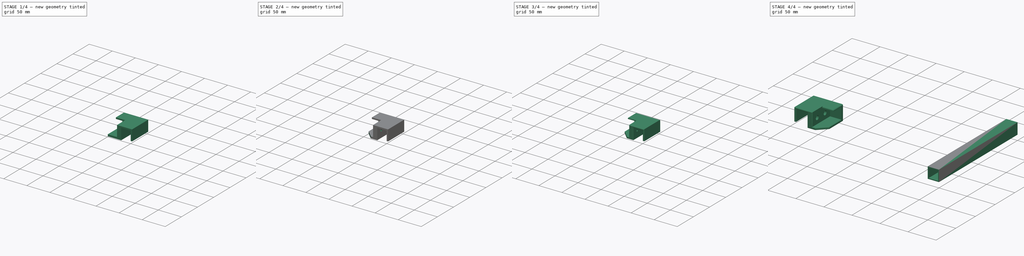
[diagram: build sequence overview — one tinted view per stage of 4, left to right]
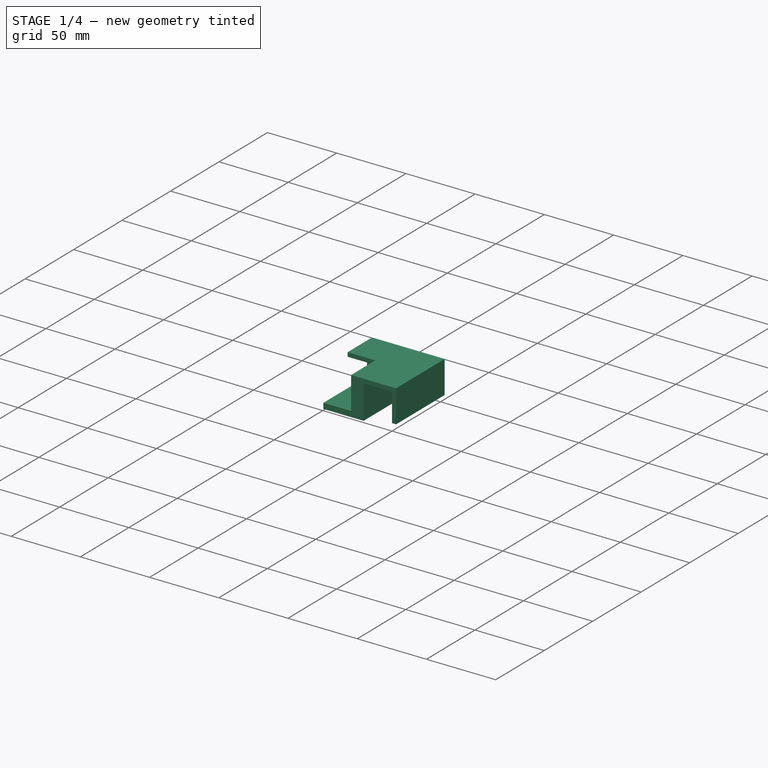
[diagram: stage 1 of 4 — iso view after this stage's code; geometry added in this stage tinted green]
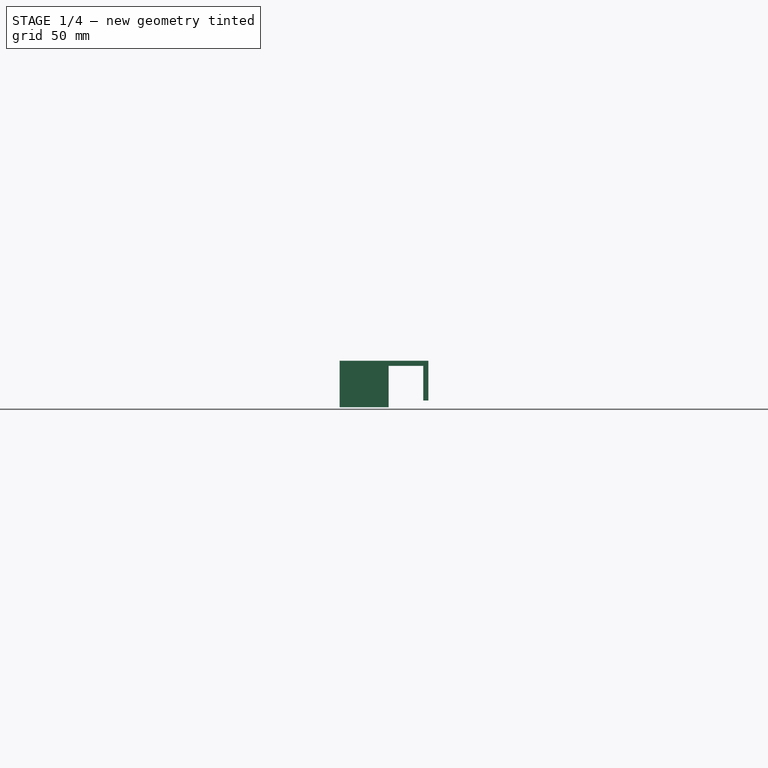
[diagram: stage 1 of 4 — front view after this stage's code; geometry added in this stage tinted green]
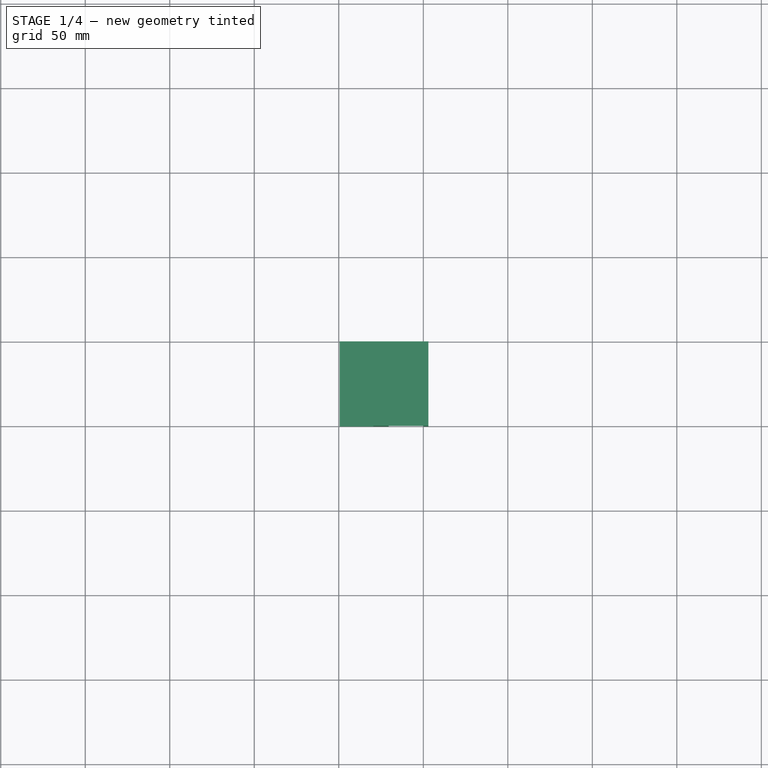
[diagram: stage 1 of 4 — top view after this stage's code; geometry added in this stage tinted green]
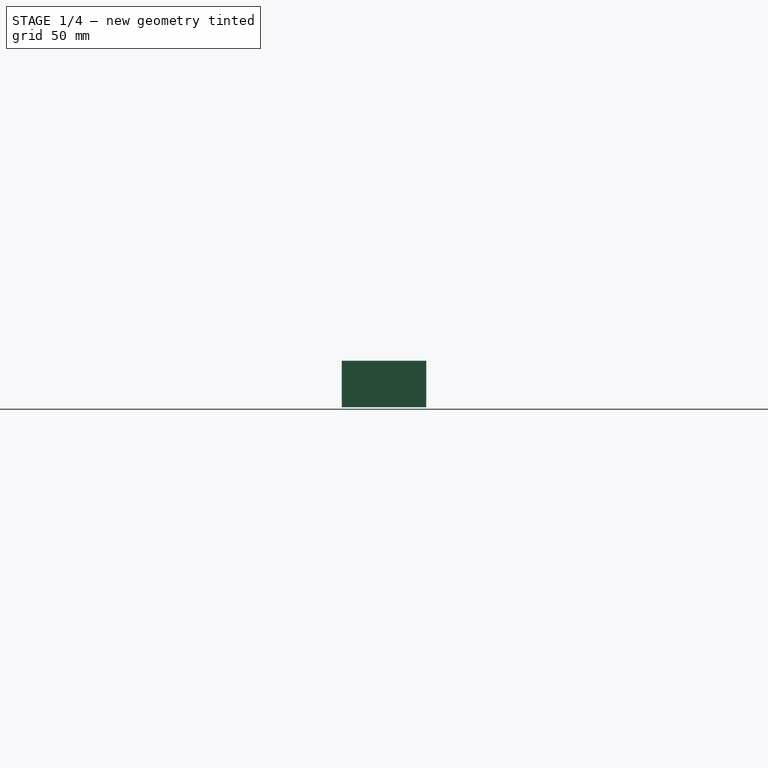
[diagram: stage 1 of 4 — right view after this stage's code; geometry added in this stage tinted green]
FCSTD DOCUMENT  (FreeCAD 1.0R39109 (Git))
Label: SolarhalterV2 Kurz
License: All rights reserved
LicenseURL: http://en.wikipedia.org/wiki/All_rights_reserved
objects: Sketcher::SketchObject×7, PartDesign::Pocket×4, PartDesign::Pad×3, PartDesign::Fillet×3, PartDesign::Body×2, Part::Mirroring×1
note: 47 computed .brp shape members not serialized (recipe doc carries the construction recipe); baked Part::Feature solids carry a one-line shape summary decoded from their .brp

FEATURE [PartDesign::Body] Body  label="Aluprofil"
  AllowCompound = false
  Group = -> [Sketch,Pad]
  Origin = -> Origin
  Tip = -> Pad
FEATURE [Sketcher::SketchObject] Sketch001
  ArcFitTolerance = 1e-06
  AttachmentSupport = -> [XZ_Plane001]
  FullyConstrained = true
  MakeInternals = false
  MapMode = 5
  Placement = pos=(0,0,0) rot=(1,0,0;1.5708rad)
  sketch-geometry (12):
    g0: LineSegment StartX=0 StartY=0 StartZ=0 EndX=0 EndY=20.5 EndZ=0
    g1: LineSegment StartX=0 StartY=20.5 StartZ=0 EndX=-20.5 EndY=20.5 EndZ=0
    g2: LineSegment StartX=-20.5 StartY=20.5 StartZ=0 EndX=-20.5 EndY=-4 EndZ=0
    g3: LineSegment StartX=-20.5 StartY=-4 StartZ=0 EndX=-49.5 EndY=-4 EndZ=0
    g4: LineSegment StartX=-49.5 StartY=-4 StartZ=0 EndX=-49.5 EndY=0 EndZ=0
    g5: LineSegment StartX=-49.5 StartY=0 StartZ=0 EndX=-29.5 EndY=0 EndZ=0
    g6: LineSegment StartX=-29.5 StartY=0 StartZ=0 EndX=-29.5 EndY=20.5 EndZ=0
    g7: LineSegment StartX=-29.5 StartY=20.5 StartZ=0 EndX=-49.5 EndY=20.5 EndZ=0
    g8: LineSegment StartX=-49.5 StartY=20.5 StartZ=0 EndX=-49.5 EndY=23.5 EndZ=0
    g9: LineSegment StartX=-49.5 StartY=23.5 StartZ=0 EndX=3 EndY=23.5 EndZ=0
    g10: LineSegment StartX=3 StartY=23.5 StartZ=0 EndX=3 EndY=0 EndZ=0
    g11: LineSegment StartX=3 StartY=0 StartZ=0 EndX=0 EndY=0 EndZ=0
  constraints (35):
    c: Coincident(g-1,g0)
    c: PointOnObject(g0,g-2)
    c: Coincident(g0,g1)
    c: Horizontal(g1)
    c: Coincident(g1,g2)
    c: Vertical(g2)
    c: Coincident(g2,g3)
    c: Horizontal(g3)
    c: Coincident(g3,g4)
    c: Vertical(g4)
    c: Coincident(g4,g5)
    c: Horizontal(g5)
    c: Coincident(g5,g6)
    c: Vertical(g6)
    c: Coincident(g6,g7)
    c: Horizontal(g7)
    c: Coincident(g7,g8)
    c: Vertical(g8)
    c: Coincident(g8,g9)
    c: Horizontal(g9)
    c: Coincident(g9,g10)
    c: PointOnObject(g10,g-1)
    c: Vertical(g10)
    c: Coincident(g10,g11)
    c: Coincident(g11,g0)
    c: DistanceY(g8,g8) = 3
    c: DistanceX(g7,g7) = 20
    c: Vertical(g4,g7)
    c: DistanceY(g4,g4) = 4
    c: DistanceY(g6,g6) = 20.5
    c: Distance(g5,g2) = 9
    c: Distance(g1,g0) = 20.5
    c: DistanceY(g0,g0) = 20.5
    c: Horizontal(g6,g1)
    c: Distance(g11,g11) = 3
FEATURE [PartDesign::Pad] Pad001
  Direction = (0,-1,2e-16)
  Length = 50
  Length2 = 10
  Placement = pos=(0,0,0) rot=(1,0,0;1.5708rad)
  Profile = -> Sketch001
  ReferenceAxis = -> Sketch001 [N_Axis]
  Suppressed = false
  Type = 0
FEATURE [Sketcher::SketchObject] Sketch002
  ArcFitTolerance = 1e-06
  AttachmentSupport = -> [Pad001]
  ExternalGeometry = -> [Pad001]
  FullyConstrained = true
  MakeInternals = false
  MapMode = 5
  Placement = pos=(0,-50,0) rot=(1,0,0;1.5708rad)
  sketch-geometry (4):
    g0: LineSegment StartX=-49.5 StartY=23.5 StartZ=0 EndX=-49.5 EndY=20.5 EndZ=0
    g1: LineSegment StartX=-49.5 StartY=20.5 StartZ=0 EndX=-29.5 EndY=20.5 EndZ=0
    g2: LineSegment StartX=-29.5 StartY=20.5 StartZ=0 EndX=-29.5 EndY=23.5 EndZ=0
    g3: LineSegment StartX=-29.5 StartY=23.5 StartZ=0 EndX=-49.5 EndY=23.5 EndZ=0
  constraints (10):
    c: Coincident(g0,g1)
    c: Coincident(g1,g2)
    c: Coincident(g2,g3)
    c: Coincident(g3,g0)
    c: Vertical(g0)
    c: Vertical(g2)
    c: Horizontal(g1)
    c: Horizontal(g3)
    c: Coincident(g0,g-4)
    c: Coincident(g1,g-3)
FEATURE [PartDesign::Pocket] Pocket
  BaseFeature = -> Pad001
  Direction = (0,1,-2e-16)
  Length = 25
  Length2 = 5
  Placement = pos=(0,0,0) rot=(1,0,0;1.5708rad)
  Profile = -> Sketch002
  ReferenceAxis = -> Sketch002 [N_Axis]
  Suppressed = false
  Type = 0
FEATURE [Sketcher::SketchObject] Sketch003
  ArcFitTolerance = 1e-06
  AttachmentSupport = -> [Pocket]
  ExternalGeometry = -> [Pocket]
  FullyConstrained = true
  MakeInternals = false
  MapMode = 5
  Placement = pos=(-29.5,0,0) rot=(0.707107,0,-0.707107;3.14159rad)
  sketch-geometry (4):
    g0: LineSegment StartX=0 StartY=0 StartZ=0 EndX=0 EndY=5 EndZ=0
    g1: LineSegment StartX=0 StartY=5 StartZ=0 EndX=-20.5 EndY=5 EndZ=0
    g2: LineSegment StartX=-20.5 StartY=5 StartZ=0 EndX=-20.5 EndY=0 EndZ=0
    g3: LineSegment StartX=-20.5 StartY=0 StartZ=0 EndX=0 EndY=0 EndZ=0
  constraints (11):
    c: Coincident(g0,g1)
    c: Coincident(g1,g2)
    c: Coincident(g2,g3)
    c: Coincident(g3,g0)
    c: Vertical(g0)
    c: Vertical(g2)
    c: Horizontal(g1)
    c: Horizontal(g3)
    c: Coincident(g0,g-1)
    c: PointOnObject(g1,g-4)
    c: DistanceY(g0,g0) = 5
FEATURE [PartDesign::Pad] Pad002
  BaseFeature = -> Pocket
  Direction = (-1,0,-2e-16)
  Length = 10
  Length2 = 10
  Placement = pos=(0,0,0) rot=(1,0,0;1.5708rad)
  Profile = -> Sketch003
  ReferenceAxis = -> Sketch003 [N_Axis]
  Suppressed = false
  Type = 3
  UpToFace = -> Pocket [Face13]
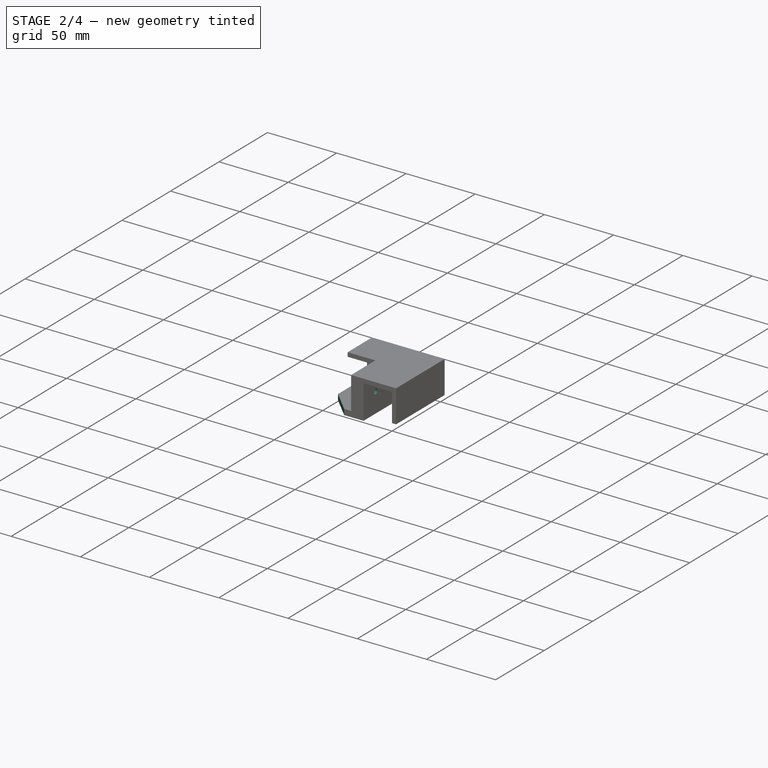
[diagram: stage 2 of 4 — iso view after this stage's code; geometry added in this stage tinted green]
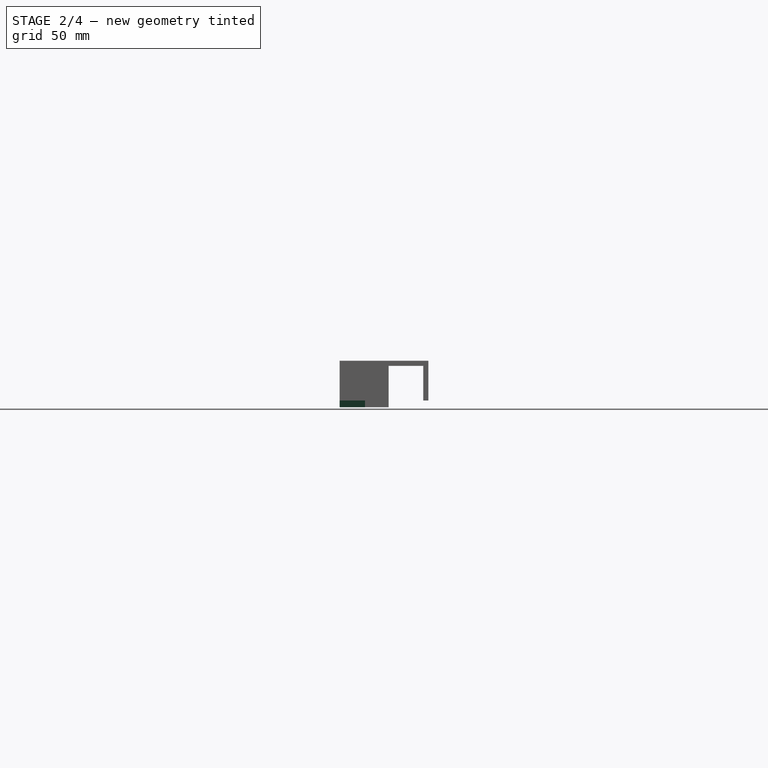
[diagram: stage 2 of 4 — front view after this stage's code; geometry added in this stage tinted green]
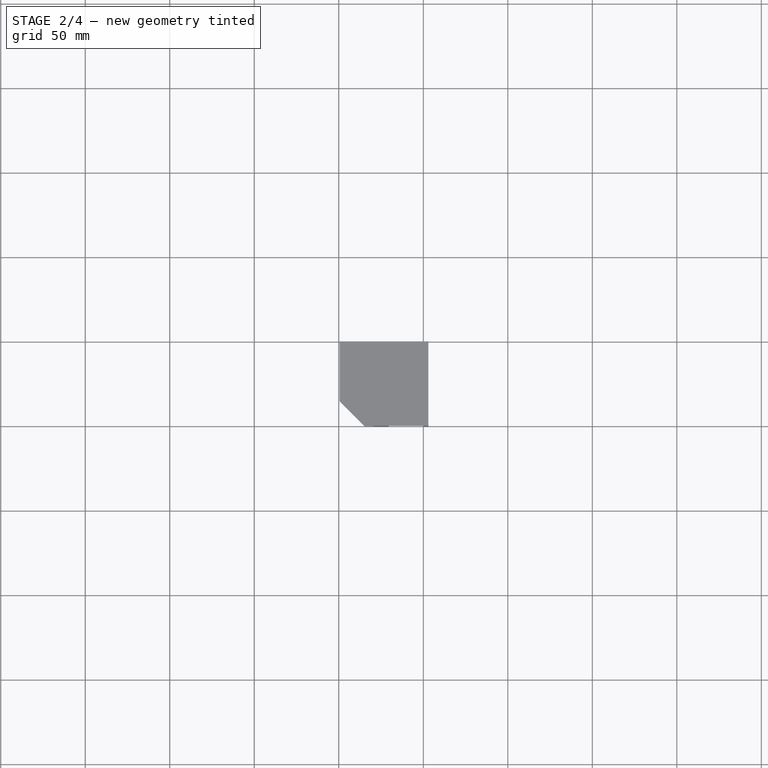
[diagram: stage 2 of 4 — top view after this stage's code; geometry added in this stage tinted green]
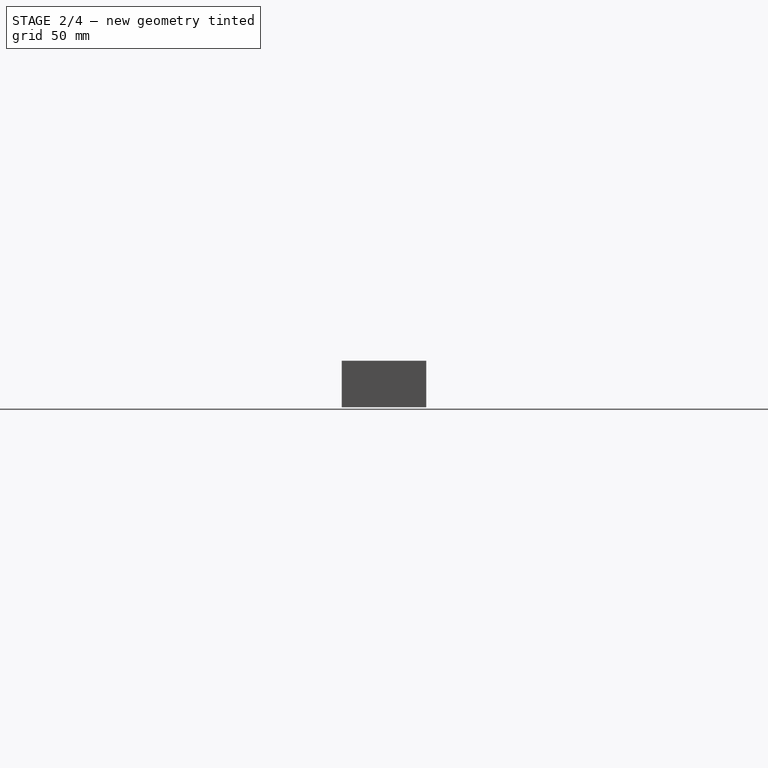
[diagram: stage 2 of 4 — right view after this stage's code; geometry added in this stage tinted green]
FEATURE [Sketcher::SketchObject] Sketch004
  ArcFitTolerance = 1e-06
  AttachmentSupport = -> [Pad002]
  ExternalGeometry = -> [Pad002]
  FullyConstrained = true
  MakeInternals = false
  MapMode = 5
  Placement = pos=(0,0,0) rot=(0,0,1;3.14159rad)
  sketch-geometry (3):
    g0: LineSegment StartX=34.5 StartY=50 StartZ=0 EndX=49.5 EndY=35 EndZ=0
    g1: LineSegment StartX=34.5 StartY=50 StartZ=0 EndX=49.5 EndY=50 EndZ=0
    g2: LineSegment StartX=49.5 StartY=50 StartZ=0 EndX=49.5 EndY=35 EndZ=0
  constraints (8):
    c: PointOnObject(g0,g-3)
    c: PointOnObject(g0,g-4)
    c: DistanceY(g0,g-4) = 15
    c: DistanceX(g0,g-4) = 15
    c: Coincident(g0,g1)
    c: Coincident(g1,g-4)
    c: Coincident(g1,g2)
    c: Coincident(g2,g0)
FEATURE [PartDesign::Pocket] Pocket001
  BaseFeature = -> Pad002
  Direction = (0,0,-1)
  Length = 5
  Length2 = 5
  Placement = pos=(0,0,0) rot=(1,0,0;1.5708rad)
  Profile = -> Sketch004
  ReferenceAxis = -> Sketch004 [N_Axis]
  Suppressed = false
  Type = 0
FEATURE [Sketcher::SketchObject] Sketch005
  ArcFitTolerance = 1e-06
  AttachmentSupport = -> [Pocket001]
  ExternalGeometry = -> [Pocket001]
  FullyConstrained = true
  MakeInternals = false
  MapMode = 5
  Placement = pos=(-29.5,0,0) rot=(0.707107,0,-0.707107;3.14159rad)
  sketch-geometry (3):
    g0: LineSegment [constr] StartX=-1.13e-14 StartY=50 StartZ=0 EndX=-20.5 EndY=25 EndZ=0
    g1: Circle CenterX=-10.25 CenterY=37.5 CenterZ=0 NormalX=0 NormalY=0 NormalZ=1 AngleXU=0 Radius=3.75
    g2: Circle CenterX=-10.25 CenterY=17.5 CenterZ=0 NormalX=0 NormalY=0 NormalZ=1 AngleXU=0 Radius=3.75
  constraints (7):
    c: Coincident(g0,g-3)
    c: Coincident(g0,g-4)
    c: Symmetric(g0,g0,g1)
    c: Diameter(g1) = 7.5
    c: Vertical(g1,g2)
    c: Equal(g1,g2)
    c: Distance(g2,g-5) = 12.5
FEATURE [PartDesign::Pocket] Pocket002
  BaseFeature = -> Pocket001
  Direction = (1,0,2e-16)
  Length = 4
  Length2 = 5
  Placement = pos=(0,0,0) rot=(1,0,0;1.5708rad)
  Profile = -> Sketch005
  ReferenceAxis = -> Sketch005 [N_Axis]
  Suppressed = false
  Type = 0
FEATURE [Sketcher::SketchObject] Sketch006
  ArcFitTolerance = 1e-06
  AttachmentSupport = -> [Pocket002]
  ExternalGeometry = -> [Pocket002]
  FullyConstrained = true
  MakeInternals = false
  MapMode = 5
  Placement = pos=(-25.5,0,-1.61e-14) rot=(0.707107,0,-0.707107;3.14159rad)
  sketch-geometry (2):
    g0: Circle CenterX=-10.25 CenterY=37.5 CenterZ=0 NormalX=0 NormalY=0 NormalZ=1 AngleXU=0 Radius=1.8
    g1: Circle CenterX=-10.25 CenterY=17.5 CenterZ=0 NormalX=0 NormalY=0 NormalZ=1 AngleXU=0 Radius=1.8
  constraints (4):
    c: Diameter(g0) = 3.6
    c: Coincident(g0,g-3)
    c: Coincident(g1,g-4)
    c: Equal(g0,g1)
FEATURE [PartDesign::Pocket] Pocket003
  BaseFeature = -> Pocket002
  Direction = (1,0,2e-16)
  Length = 5
  Length2 = 5
  Placement = pos=(0,0,0) rot=(1,0,0;1.5708rad)
  Profile = -> Sketch006
  ReferenceAxis = -> Sketch006 [N_Axis]
  Suppressed = false
  Type = 0
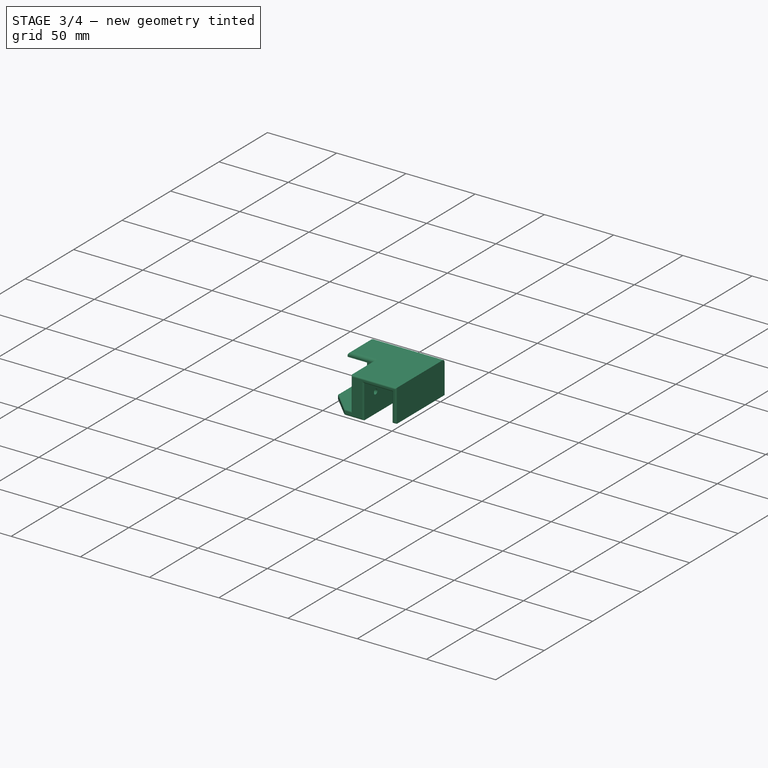
[diagram: stage 3 of 4 — iso view after this stage's code; geometry added in this stage tinted green]
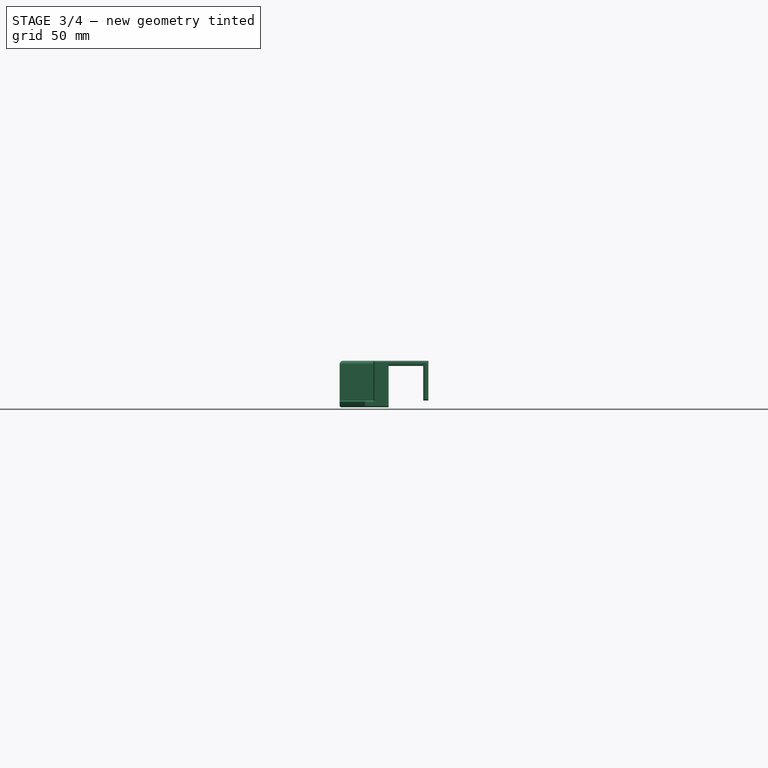
[diagram: stage 3 of 4 — front view after this stage's code; geometry added in this stage tinted green]
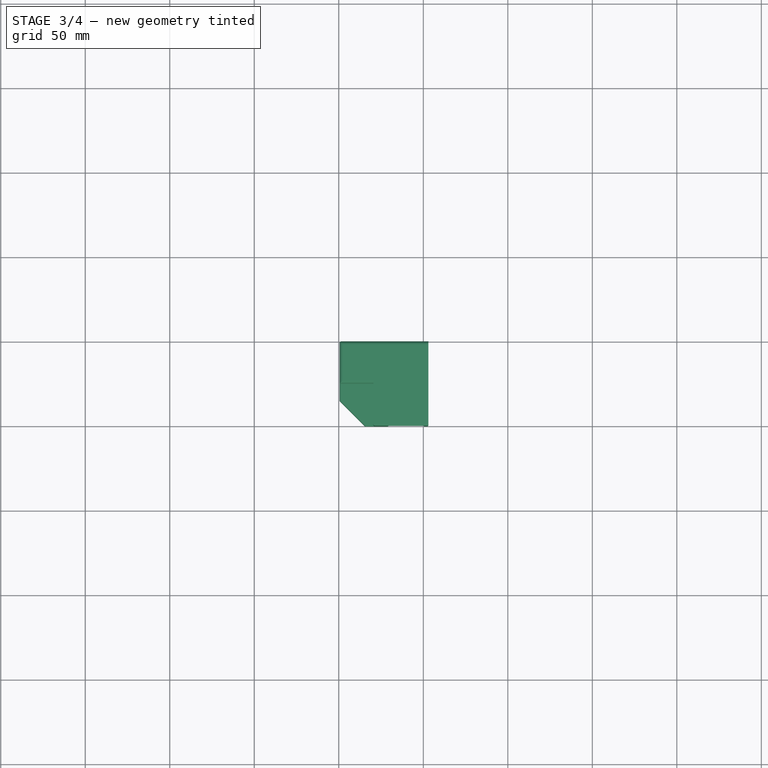
[diagram: stage 3 of 4 — top view after this stage's code; geometry added in this stage tinted green]
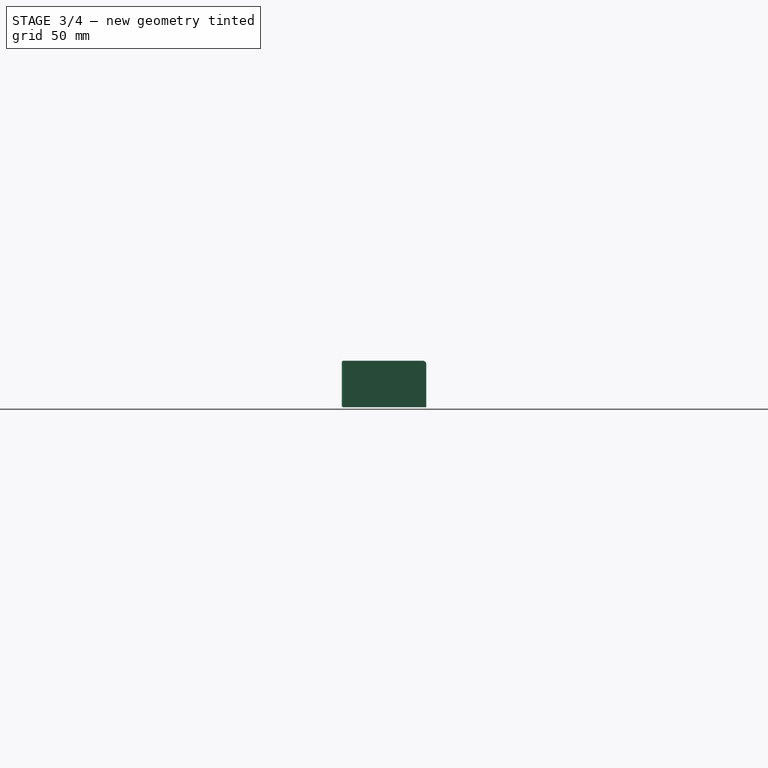
[diagram: stage 3 of 4 — right view after this stage's code; geometry added in this stage tinted green]
FEATURE [PartDesign::Fillet] Fillet
  Base = -> Pocket003 [Face5,Face16,Face9]
  BaseFeature = -> Pocket003
  Placement = pos=(0,0,0) rot=(1,0,0;1.5708rad)
  Radius = 1
  SupportTransform = false
  Suppressed = false
  UseAllEdges = false
FEATURE [PartDesign::Fillet] Fillet001
  Base = -> Fillet [Edge51,Edge53]
  BaseFeature = -> Fillet
  Placement = pos=(0,0,0) rot=(1,0,0;1.5708rad)
  Radius = 2
  SupportTransform = false
  Suppressed = false
  UseAllEdges = false
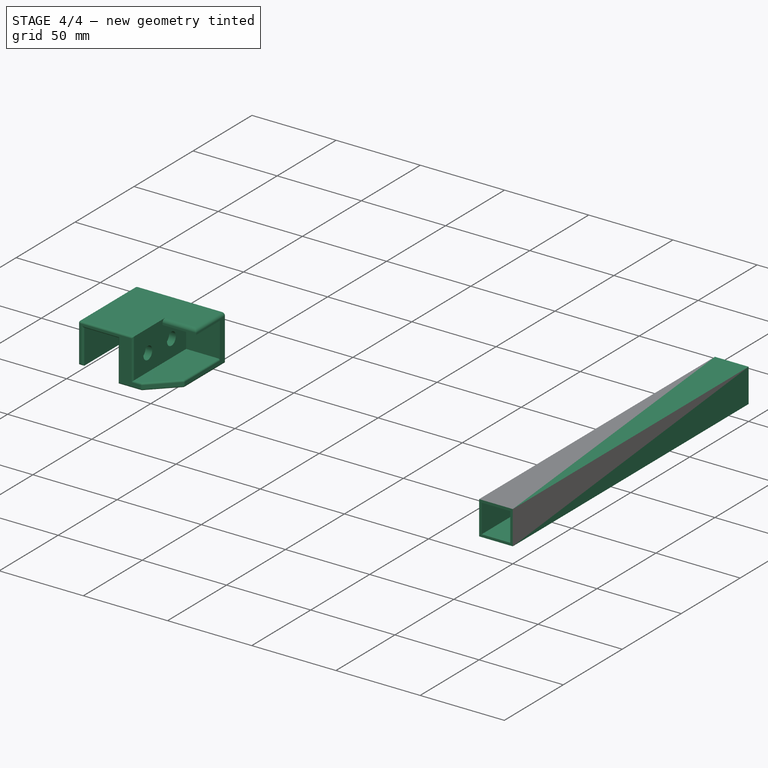
[diagram: stage 4 of 4 — iso view after this stage's code; geometry added in this stage tinted green]
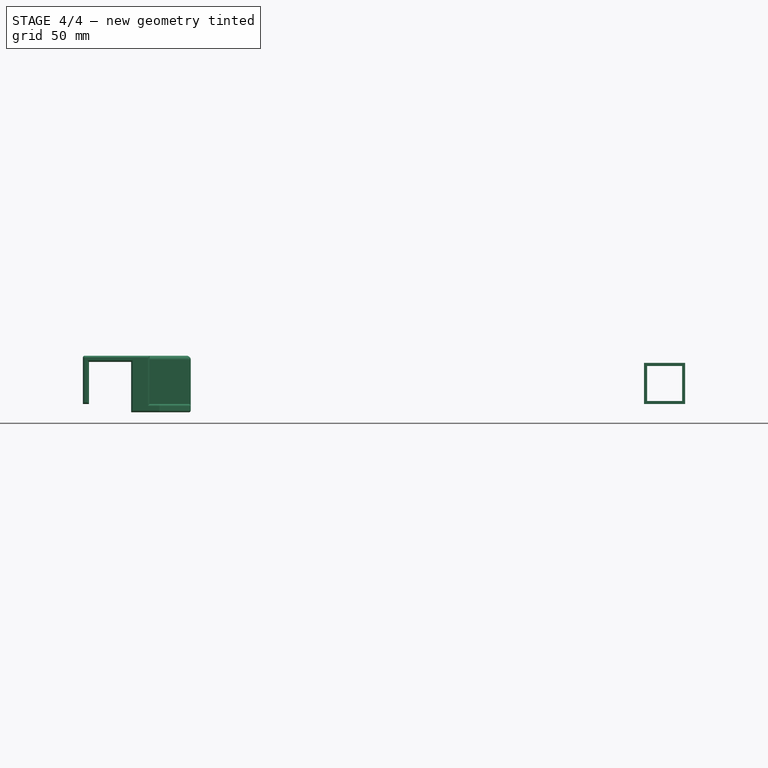
[diagram: stage 4 of 4 — front view after this stage's code; geometry added in this stage tinted green]
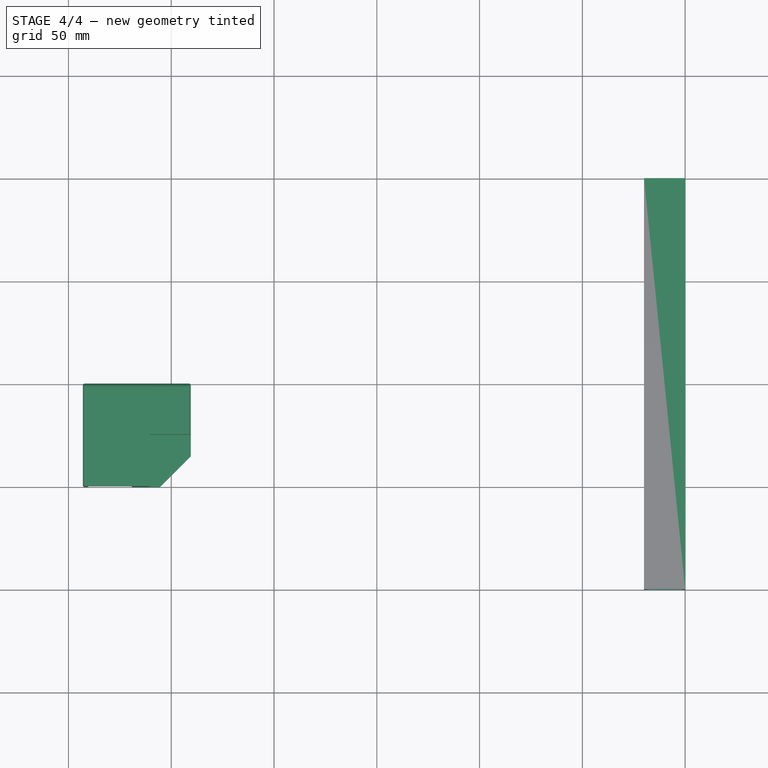
[diagram: stage 4 of 4 — top view after this stage's code; geometry added in this stage tinted green]
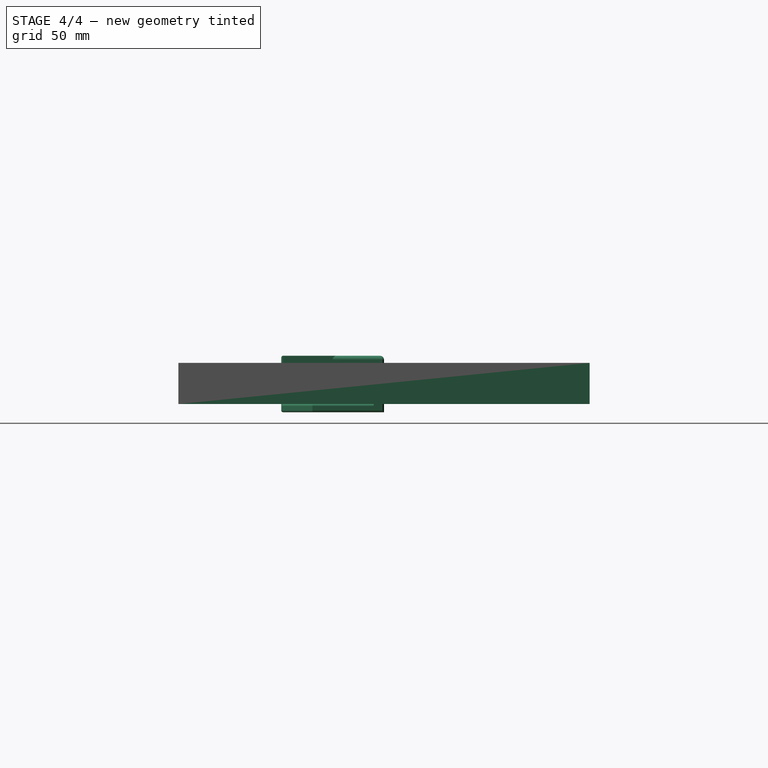
[diagram: stage 4 of 4 — right view after this stage's code; geometry added in this stage tinted green]
FEATURE [Sketcher::SketchObject] Sketch
  ArcFitTolerance = 1e-06
  AttachmentSupport = -> [XZ_Plane]
  FullyConstrained = true
  MakeInternals = false
  MapMode = 5
  Placement = pos=(0,0,0) rot=(1,0,0;1.5708rad)
  sketch-geometry (10):
    g0: LineSegment StartX=0 StartY=1e-15 StartZ=0 EndX=0 EndY=20 EndZ=0
    g1: LineSegment StartX=0 StartY=20 StartZ=0 EndX=-20 EndY=20 EndZ=0
    g2: LineSegment StartX=-20 StartY=20 StartZ=0 EndX=-20 EndY=0 EndZ=0
    g3: LineSegment StartX=-20 StartY=1e-15 StartZ=0 EndX=0 EndY=1e-15 EndZ=0
    g4: LineSegment [constr] StartX=-20 StartY=20 StartZ=0 EndX=-1e-15 EndY=1e-15 EndZ=0
    g5: LineSegment StartX=-18.5 StartY=1.5 StartZ=0 EndX=-1.5 EndY=1.5 EndZ=0
    g6: LineSegment StartX=-1.5 StartY=1.5 StartZ=0 EndX=-1.5 EndY=18.5 EndZ=0
    g7: LineSegment StartX=-1.5 StartY=18.5 StartZ=0 EndX=-18.5 EndY=18.5 EndZ=0
    g8: LineSegment StartX=-18.5 StartY=18.5 StartZ=0 EndX=-18.5 EndY=1.5 EndZ=0
    g9: GeomPoint [constr] X=-10 Y=10 Z=0
  constraints (25):
    c: Coincident(g0,g1)
    c: Coincident(g1,g2)
    c: Coincident(g2,g3)
    c: Coincident(g3,g0)
    c: Vertical(g0)
    c: Vertical(g2)
    c: Horizontal(g1)
    c: Horizontal(g3)
    c: Distance(g0,g2) = 20
    c: Distance(g1,g3) = 20
    c: Coincident(g0,g-1)
    c: Coincident(g4,g1)
    c: Coincident(g4,g0)
    c: Coincident(g5,g6)
    c: Coincident(g6,g7)
    c: Coincident(g7,g8)
    c: Coincident(g8,g5)
    c: Horizontal(g5)
    c: Horizontal(g7)
    c: Vertical(g6)
    c: Vertical(g8)
    c: Symmetric(g7,g5,g9)
    c: Distance(g6,g8) = 17
    c: Distance(g5,g7) = 17
    c: Symmetric(g4,g4,g9)
FEATURE [PartDesign::Pad] Pad
  Direction = (0,-1,2e-16)
  Length = 200
  Length2 = 10
  Midplane = true
  Placement = pos=(0,0,0) rot=(1,0,0;1.5708rad)
  Profile = -> Sketch
  ReferenceAxis = -> Sketch [N_Axis]
  Suppressed = false
  Type = 0
FEATURE [PartDesign::Fillet] Fillet002
  Base = -> Fillet001 [Edge20,Edge16,Edge4]
  BaseFeature = -> Fillet001
  Placement = pos=(0,0,0) rot=(1,0,0;1.5708rad)
  Radius = 0.9
  SupportTransform = false
  Suppressed = false
  UseAllEdges = false
FEATURE [PartDesign::Body] Body001  label="SolarhalterV2"
  AllowCompound = false
  Group = -> [Sketch001,Pad001,Sketch002,Pocket,Sketch003,Pad002,Sketch004,Pocket001,Sketch005,Pocket002,Sketch006,Pocket003,Fillet,Fillet001,Fillet002]
  Origin = -> Origin001
  Tip = -> Fillet002
FEATURE [Part::Mirroring] Part__Mirroring  label="SolarhalterV2 (Mirror #1)"
  Base = (0,0,0)
  Normal = (1,0,0)
  Placement = pos=(-290,0,0) rot=(0,0,1;0rad)
  Source = -> Body001
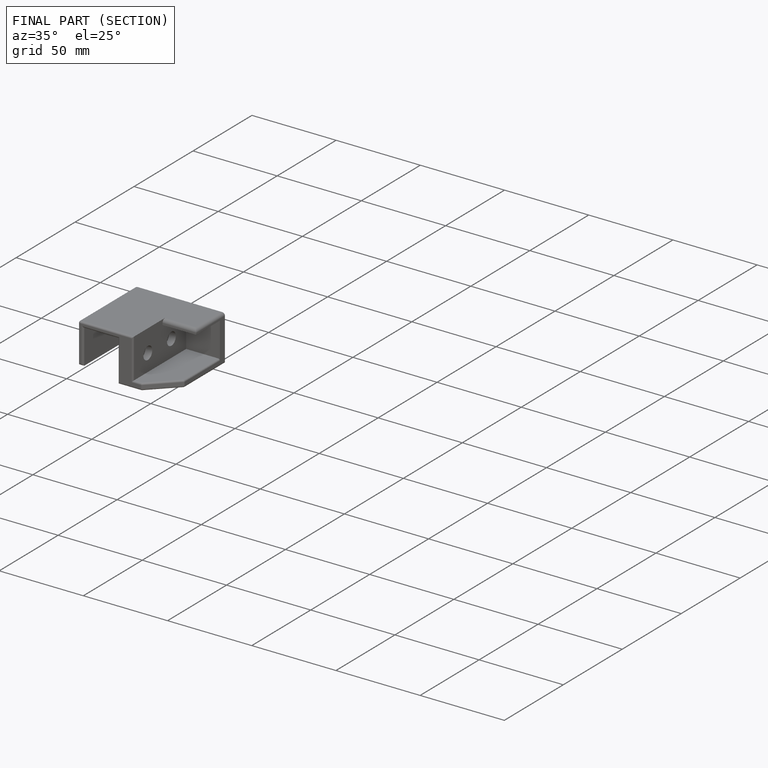
[diagram: finished part — half-section view (interior)]
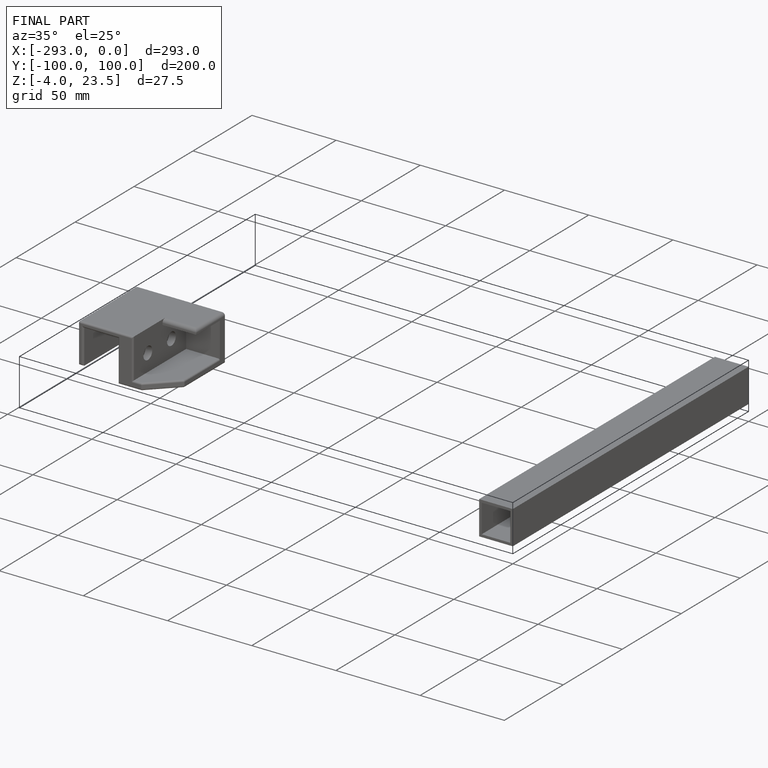
[diagram: finished part — iso view with bounding-box wireframe]
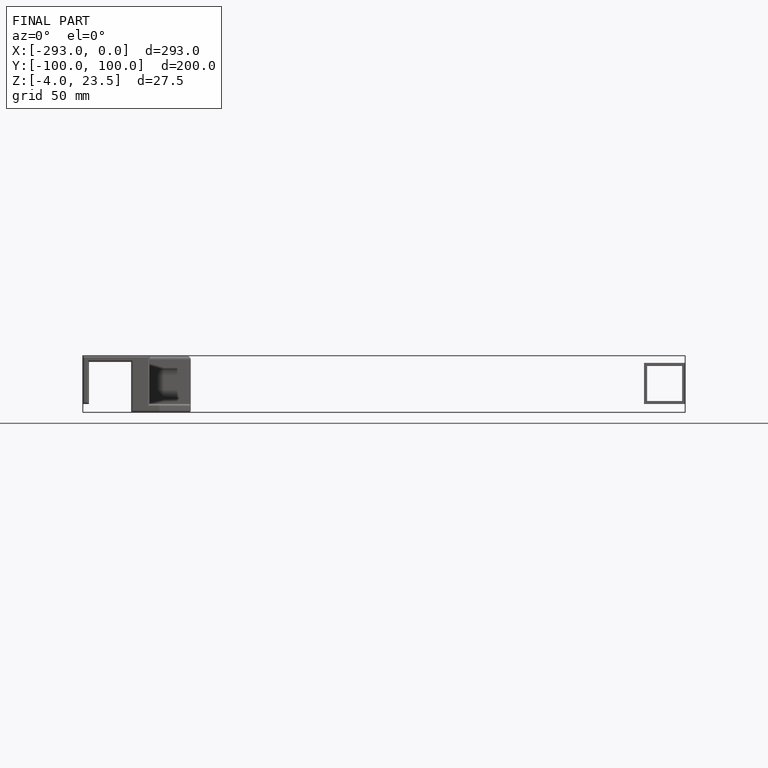
[diagram: finished part — front view with bounding-box wireframe]
